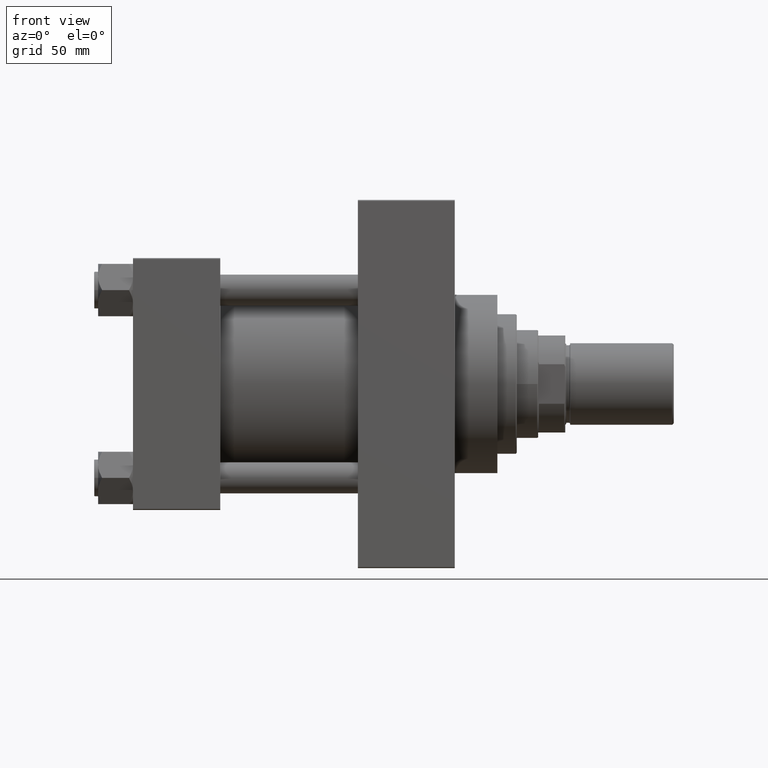
[diagram: clean part render]
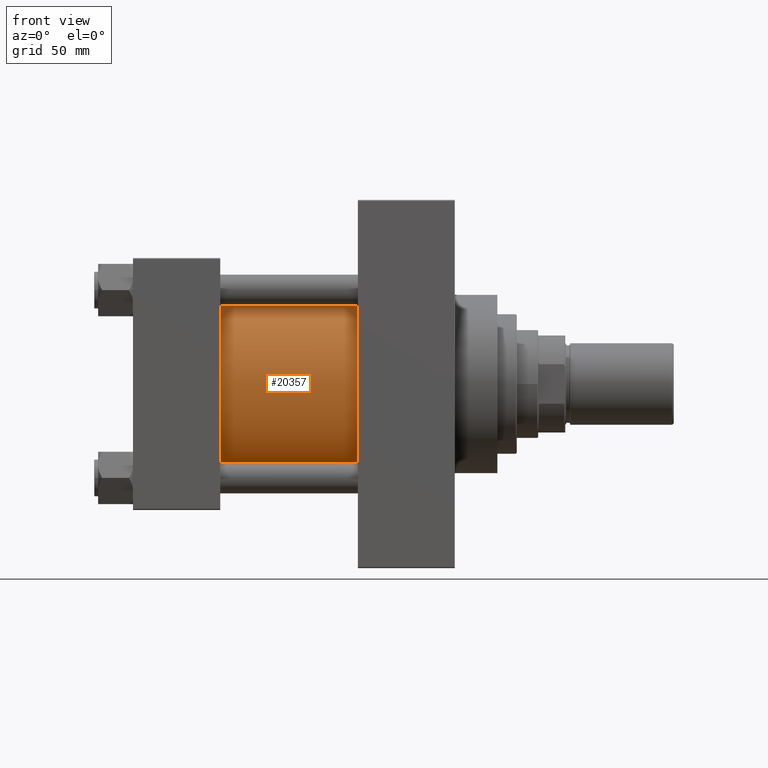
[diagram: same view with one face highlighted and labeled with its STEP entity id]
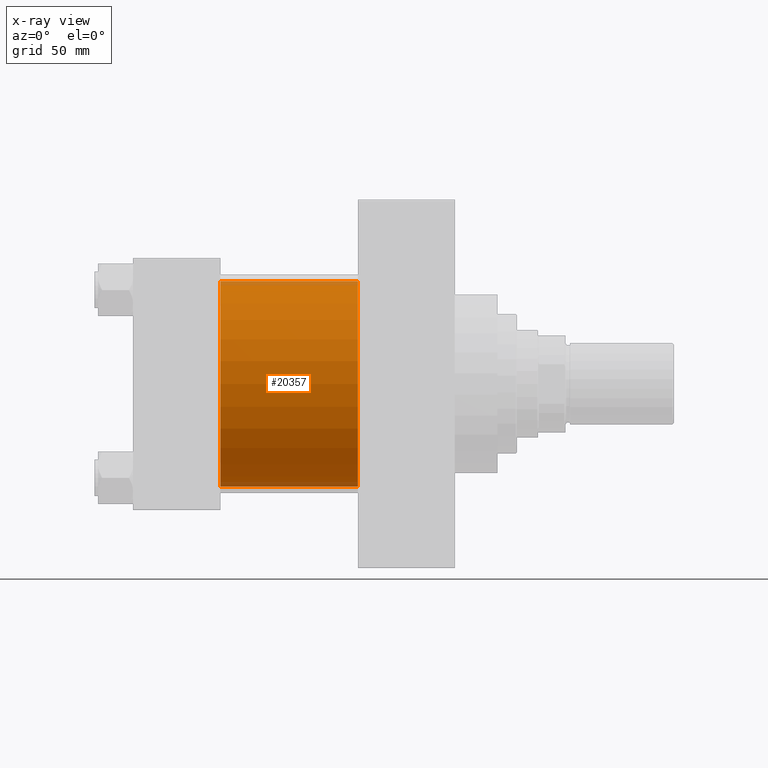
[diagram: x-ray of the same camera — body ghosted, the highlighted face saturated]
A machine part, front view. The second image highlights one B-rep face of the part: STEP entity #20357.
The next image is the same camera in x-ray: the body ghosted, the highlighted face saturated — about 4% of this face is hidden behind the body in this view.
In plain terms, the highlighted cylindrical surface (partial cylindrical patch) has radius 53 mm, axis along (-1, -0, -0).
Its self-contained STEP definition (entity closure, byte-faithful):
#107 = CARTESIAN_POINT ( 'NONE',  ( 115.9999999999999858, -2.602085213965210642E-15, 53.00000000000000711 ) ) ;
#1949 = DIRECTION ( 'NONE',  ( 1.000000000000000000, -0.000000000000000000, 0.000000000000000000 ) ) ;
#2196 = CARTESIAN_POINT ( 'NONE',  ( 45.00000000000000000, -2.602085213965210642E-15, 0.000000000000000000 ) ) ;
#2451 = FACE_OUTER_BOUND ( 'NONE', #20421, .T. ) ;
#2927 = EDGE_CURVE ( 'NONE', #15585, #33357, #18067, .T. ) ;
#4562 = VECTOR ( 'NONE', #6228, 1000.000000000000000 ) ;
#4629 = CARTESIAN_POINT ( 'NONE',  ( 115.9999999999999858, -2.602085213965210642E-15, 0.000000000000000000 ) ) ;
#6049 = ORIENTED_EDGE ( 'NONE', *, *, #2927, .T. ) ;
#6228 = DIRECTION ( 'NONE',  ( -1.000000000000000000, -0.000000000000000000, -0.000000000000000000 ) ) ;
#6619 = CARTESIAN_POINT ( 'NONE',  ( 115.9999999999999858, -2.602085213965210642E-15, 0.000000000000000000 ) ) ;
#7399 = VERTEX_POINT ( 'NONE', #32510 ) ;
#7973 = DIRECTION ( 'NONE',  ( -1.000000000000000000, -0.000000000000000000, -0.000000000000000000 ) ) ;
#8363 = CIRCLE ( 'NONE', #23226, 53.00000000000000711 ) ;
#9066 = EDGE_CURVE ( 'NONE', #39642, #7399, #8363, .T. ) ;
#9743 = ORIENTED_EDGE ( 'NONE', *, *, #46186, .F. ) ;
#15585 = VERTEX_POINT ( 'NONE', #29054 ) ;
#17394 = CYLINDRICAL_SURFACE ( 'NONE', #32088, 53.00000000000000711 ) ;
#18066 = VECTOR ( 'NONE', #7973, 1000.000000000000000 ) ;
#18067 = CIRCLE ( 'NONE', #25906, 53.00000000000000711 ) ;
#19222 = CARTESIAN_POINT ( 'NONE',  ( 115.9999999999999858, -2.602085213965210642E-15, 53.00000000000000711 ) ) ;
#19570 = DIRECTION ( 'NONE',  ( 0.000000000000000000, 0.000000000000000000, -1.000000000000000000 ) ) ;
#20357 = ADVANCED_FACE ( 'NONE', ( #2451 ), #17394, .T. ) ;
#20421 = EDGE_LOOP ( 'NONE', ( #9743, #22003, #36416, #6049 ) ) ;
#21134 = EDGE_CURVE ( 'NONE', #39642, #15585, #30022, .T. ) ;
#21556 = DIRECTION ( 'NONE',  ( -1.000000000000000000, -0.000000000000000000, -0.000000000000000000 ) ) ;
#22003 = ORIENTED_EDGE ( 'NONE', *, *, #9066, .F. ) ;
#23226 = AXIS2_PLACEMENT_3D ( 'NONE', #4629, #30365, #19570 ) ;
#24365 = CARTESIAN_POINT ( 'NONE',  ( 115.9999999999999858, 3.888542821515762466E-15, -53.00000000000000711 ) ) ;
#25906 = AXIS2_PLACEMENT_3D ( 'NONE', #2196, #1949, #46746 ) ;
#28035 = LINE ( 'NONE', #24365, #4562 ) ;
#29054 = CARTESIAN_POINT ( 'NONE',  ( 45.00000000000000000, -2.602085213965210642E-15, 53.00000000000000711 ) ) ;
#30022 = LINE ( 'NONE', #19222, #18066 ) ;
#30365 = DIRECTION ( 'NONE',  ( 1.000000000000000000, 0.000000000000000000, 0.000000000000000000 ) ) ;
#32088 = AXIS2_PLACEMENT_3D ( 'NONE', #6619, #21556, #44305 ) ;
#32510 = CARTESIAN_POINT ( 'NONE',  ( 115.9999999999999858, 3.888542821515762466E-15, -53.00000000000000711 ) ) ;
#33357 = VERTEX_POINT ( 'NONE', #38221 ) ;
#36416 = ORIENTED_EDGE ( 'NONE', *, *, #21134, .T. ) ;
#38221 = CARTESIAN_POINT ( 'NONE',  ( 45.00000000000000000, 3.888542821515762466E-15, -53.00000000000000711 ) ) ;
#39642 = VERTEX_POINT ( 'NONE', #107 ) ;
#44305 = DIRECTION ( 'NONE',  ( 0.000000000000000000, 0.000000000000000000, 1.000000000000000000 ) ) ;
#46186 = EDGE_CURVE ( 'NONE', #7399, #33357, #28035, .T. ) ;
#46746 = DIRECTION ( 'NONE',  ( 0.000000000000000000, 0.000000000000000000, 1.000000000000000000 ) ) ;